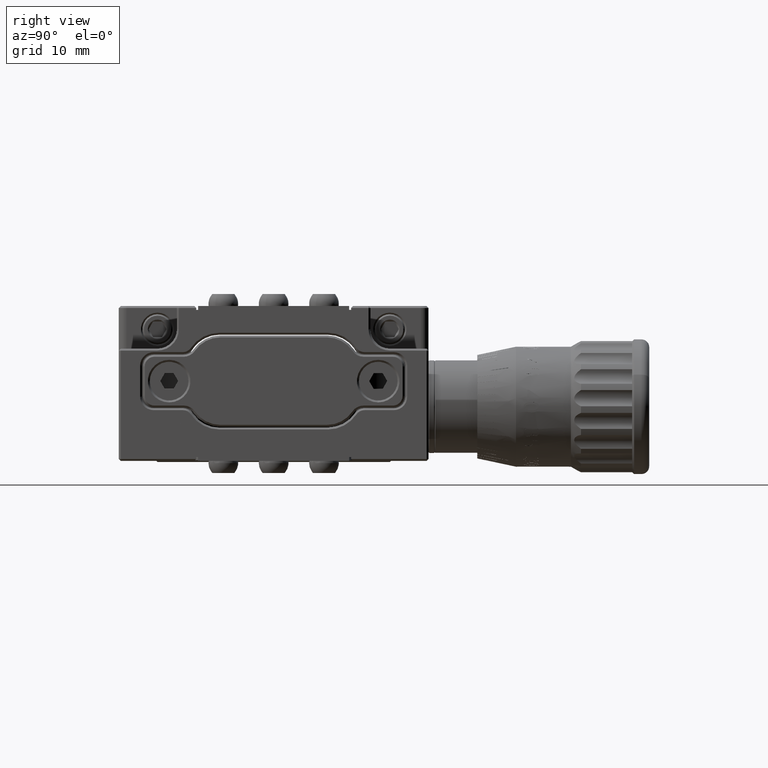
[diagram: clean part render]
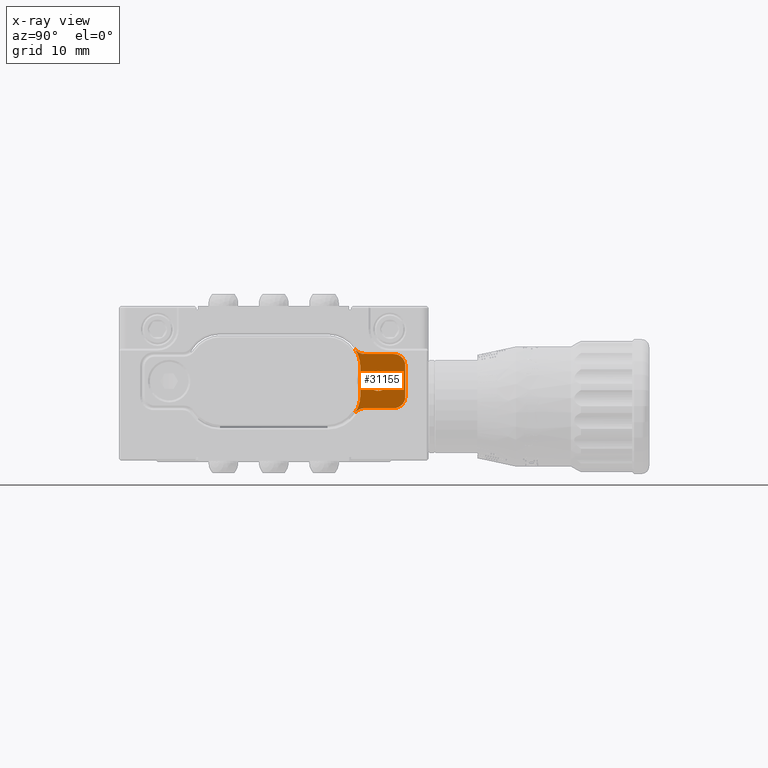
[diagram: x-ray — body ghosted, one internal face saturated and labeled with its STEP entity id]
A machine part, right view, then the same camera in x-ray: the body is ghosted and one INTERNAL B-rep face — a face not visible from any outside direction — is saturated and labeled: STEP entity #31155.
In plain terms, the highlighted planar face has unit normal (1, 0, 0).
Its self-contained STEP definition (entity closure, byte-faithful):
#1228 = CARTESIAN_POINT ( 'NONE',  ( 38.50000000000000000, 11.19999999999999574, 6.500000000000001776 ) ) ;
#1509 = CARTESIAN_POINT ( 'NONE',  ( 38.50000000000000000, -2.602085213965210642E-16, 0.000000000000000000 ) ) ;
#1915 = DIRECTION ( 'NONE',  ( 0.000000000000000000, -1.000000000000000000, 0.000000000000000000 ) ) ;
#1993 = LINE ( 'NONE', #32890, #43837 ) ;
#2086 = ORIENTED_EDGE ( 'NONE', *, *, #10076, .T. ) ;
#2471 = EDGE_CURVE ( 'NONE', #23355, #14434, #10988, .T. ) ;
#2668 = LINE ( 'NONE', #42305, #41640 ) ;
#2868 = EDGE_CURVE ( 'NONE', #35720, #18255, #11944, .T. ) ;
#3384 = CARTESIAN_POINT ( 'NONE',  ( 38.50000000000000000, 17.00000000000000711, 8.200000000000006395 ) ) ;
#3589 = AXIS2_PLACEMENT_3D ( 'NONE', #32533, #24815, #10231 ) ;
#3759 = ORIENTED_EDGE ( 'NONE', *, *, #42748, .T. ) ;
#3999 = AXIS2_PLACEMENT_3D ( 'NONE', #14407, #25687, #44116 ) ;
#4513 = CARTESIAN_POINT ( 'NONE',  ( 38.50000000000000000, 11.19999999999999574, 2.900000000000000799 ) ) ;
#4667 = ORIENTED_EDGE ( 'NONE', *, *, #7773, .T. ) ;
#4669 = CARTESIAN_POINT ( 'NONE',  ( 38.50000000000000000, 17.00000000000000711, 6.700000000000006395 ) ) ;
#5147 = CARTESIAN_POINT ( 'NONE',  ( 38.50000000000000000, 17.00000000000000711, 2.699999999999995737 ) ) ;
#5547 = ORIENTED_EDGE ( 'NONE', *, *, #6050, .T. ) ;
#5914 = AXIS2_PLACEMENT_3D ( 'NONE', #40108, #33057, #36616 ) ;
#6050 = EDGE_CURVE ( 'NONE', #18052, #35720, #21854, .T. ) ;
#6114 = DIRECTION ( 'NONE',  ( 1.000000000000000000, 0.000000000000000000, 0.000000000000000000 ) ) ;
#6265 = ORIENTED_EDGE ( 'NONE', *, *, #2471, .T. ) ;
#6900 = VERTEX_POINT ( 'NONE', #4669 ) ;
#7773 = EDGE_CURVE ( 'NONE', #18255, #43847, #2668, .T. ) ;
#8674 = FACE_OUTER_BOUND ( 'NONE', #36574, .T. ) ;
#8780 = DIRECTION ( 'NONE',  ( 0.000000000000000000, 0.000000000000000000, -1.000000000000000000 ) ) ;
#9094 = CARTESIAN_POINT ( 'NONE',  ( 38.50000000000000000, 11.71699056602829536, 9.700000000000004619 ) ) ;
#9154 = CARTESIAN_POINT ( 'NONE',  ( 38.50000000000000000, 10.47567725917874171, 0.5421052631578919812 ) ) ;
#9470 = VERTEX_POINT ( 'NONE', #9154 ) ;
#10076 = EDGE_CURVE ( 'NONE', #6900, #34835, #45894, .T. ) ;
#10231 = DIRECTION ( 'NONE',  ( 0.000000000000000000, -8.260587980841937794E-16, -1.000000000000000000 ) ) ;
#10472 = CARTESIAN_POINT ( 'NONE',  ( 38.50000000000000000, 6.999999999999994671, 2.900000000000000799 ) ) ;
#10641 = AXIS2_PLACEMENT_3D ( 'NONE', #15619, #22764, #45333 ) ;
#10653 = LINE ( 'NONE', #31711, #11751 ) ;
#10988 = CIRCLE ( 'NONE', #44078, 1.500000000000000000 ) ;
#11197 = DIRECTION ( 'NONE',  ( -1.000000000000000000, -0.000000000000000000, -0.000000000000000000 ) ) ;
#11751 = VECTOR ( 'NONE', #1915, 1000.000000000000000 ) ;
#11944 = CIRCLE ( 'NONE', #3589, 4.200000000000000178 ) ;
#12030 = EDGE_CURVE ( 'NONE', #19008, #19717, #38126, .T. ) ;
#12460 = AXIS2_PLACEMENT_3D ( 'NONE', #10472, #28927, #21369 ) ;
#12591 = CARTESIAN_POINT ( 'NONE',  ( 38.49999999999999289, 13.50000000000000000, 3.425000000000001155 ) ) ;
#13313 = ORIENTED_EDGE ( 'NONE', *, *, #23766, .T. ) ;
#14407 = CARTESIAN_POINT ( 'NONE',  ( 38.49999999999999289, 13.50000000000000000, 4.700000000000001066 ) ) ;
#14434 = VERTEX_POINT ( 'NONE', #5147 ) ;
#14518 = DIRECTION ( 'NONE',  ( 0.000000000000000000, 2.312964634635742661E-15, -1.000000000000000000 ) ) ;
#14570 = LINE ( 'NONE', #3384, #32976 ) ;
#15619 = CARTESIAN_POINT ( 'NONE',  ( 38.49999999999999289, 13.50000000000000000, 4.700000000000001066 ) ) ;
#16738 = CARTESIAN_POINT ( 'NONE',  ( 38.50000000000000000, 10.47567725917874348, 8.857894736842109040 ) ) ;
#17394 = CARTESIAN_POINT ( 'NONE',  ( 38.49999999999999289, 13.50000000000000000, 5.975000000000001421 ) ) ;
#18052 = VERTEX_POINT ( 'NONE', #39450 ) ;
#18188 = DIRECTION ( 'NONE',  ( -0.000000000000000000, -0.000000000000000000, 1.000000000000000000 ) ) ;
#18255 = VERTEX_POINT ( 'NONE', #1228 ) ;
#19008 = VERTEX_POINT ( 'NONE', #12591 ) ;
#19717 = VERTEX_POINT ( 'NONE', #17394 ) ;
#20373 = CIRCLE ( 'NONE', #3999, 1.275000000000000133 ) ;
#21369 = DIRECTION ( 'NONE',  ( 0.000000000000000000, -1.858632295689436004E-15, -1.000000000000000000 ) ) ;
#21854 = CIRCLE ( 'NONE', #40897, 1.499999999999999556 ) ;
#22586 = EDGE_CURVE ( 'NONE', #9470, #35543, #39370, .T. ) ;
#22764 = DIRECTION ( 'NONE',  ( 1.000000000000000000, -0.000000000000000000, -0.000000000000000000 ) ) ;
#23355 = VERTEX_POINT ( 'NONE', #32942 ) ;
#23578 = PLANE ( 'NONE',  #42716 ) ;
#23766 = EDGE_CURVE ( 'NONE', #35543, #23355, #1993, .T. ) ;
#24815 = DIRECTION ( 'NONE',  ( -1.000000000000000000, -0.000000000000000000, -0.000000000000000000 ) ) ;
#25490 = CARTESIAN_POINT ( 'NONE',  ( 38.50000000000000000, 11.71699056602829359, -0.3000000000000038192 ) ) ;
#25687 = DIRECTION ( 'NONE',  ( 1.000000000000000000, -0.000000000000000000, -0.000000000000000000 ) ) ;
#26781 = DIRECTION ( 'NONE',  ( 1.000000000000000000, 0.000000000000000000, 0.000000000000000000 ) ) ;
#26994 = FACE_BOUND ( 'NONE', #40769, .T. ) ;
#27458 = CIRCLE ( 'NONE', #12460, 4.200000000000000178 ) ;
#27732 = CARTESIAN_POINT ( 'NONE',  ( 38.50000000000000000, 15.50000000000000888, 2.699999999999995737 ) ) ;
#28711 = ORIENTED_EDGE ( 'NONE', *, *, #40632, .T. ) ;
#28927 = DIRECTION ( 'NONE',  ( -1.000000000000000000, -0.000000000000000000, -0.000000000000000000 ) ) ;
#29676 = EDGE_CURVE ( 'NONE', #19717, #19008, #20373, .T. ) ;
#29737 = ORIENTED_EDGE ( 'NONE', *, *, #22586, .T. ) ;
#30154 = ORIENTED_EDGE ( 'NONE', *, *, #38503, .T. ) ;
#30496 = DIRECTION ( 'NONE',  ( 0.000000000000000000, 0.000000000000000000, -1.000000000000000000 ) ) ;
#30801 = ORIENTED_EDGE ( 'NONE', *, *, #2868, .T. ) ;
#31155 = ADVANCED_FACE ( 'NONE', ( #26994, #8674 ), #23578, .T. ) ;
#31281 = DIRECTION ( 'NONE',  ( 0.000000000000000000, 1.445602896647339163E-16, -1.000000000000000000 ) ) ;
#31383 = DIRECTION ( 'NONE',  ( -1.000000000000000000, -0.000000000000000000, -0.000000000000000000 ) ) ;
#31711 = CARTESIAN_POINT ( 'NONE',  ( 38.50000000000000000, 17.00000000000000711, 8.200000000000006395 ) ) ;
#32533 = CARTESIAN_POINT ( 'NONE',  ( 38.50000000000000000, 6.999999999999995559, 6.500000000000000888 ) ) ;
#32574 = DIRECTION ( 'NONE',  ( -0.000000000000000000, 1.000000000000000000, -0.000000000000000000 ) ) ;
#32890 = CARTESIAN_POINT ( 'NONE',  ( 38.50000000000000000, 17.00000000000000711, 1.199999999999996181 ) ) ;
#32942 = CARTESIAN_POINT ( 'NONE',  ( 38.50000000000000000, 15.50000000000000888, 1.199999999999996181 ) ) ;
#32976 = VECTOR ( 'NONE', #18188, 1000.000000000000000 ) ;
#33057 = DIRECTION ( 'NONE',  ( 1.000000000000000000, 0.000000000000000000, 0.000000000000000000 ) ) ;
#34835 = VERTEX_POINT ( 'NONE', #43774 ) ;
#35543 = VERTEX_POINT ( 'NONE', #43811 ) ;
#35720 = VERTEX_POINT ( 'NONE', #16738 ) ;
#36574 = EDGE_LOOP ( 'NONE', ( #13313, #6265, #28711, #2086, #30154, #5547, #30801, #4667, #3759, #29737 ) ) ;
#36616 = DIRECTION ( 'NONE',  ( 0.000000000000000000, 0.000000000000000000, -1.000000000000000000 ) ) ;
#38126 = CIRCLE ( 'NONE', #10641, 1.275000000000000133 ) ;
#38503 = EDGE_CURVE ( 'NONE', #34835, #18052, #10653, .T. ) ;
#38991 = DIRECTION ( 'NONE',  ( 0.000000000000000000, 0.000000000000000000, -1.000000000000000000 ) ) ;
#39370 = CIRCLE ( 'NONE', #39637, 1.500000000000000000 ) ;
#39450 = CARTESIAN_POINT ( 'NONE',  ( 38.50000000000000000, 11.71699056602829536, 8.200000000000006395 ) ) ;
#39637 = AXIS2_PLACEMENT_3D ( 'NONE', #25490, #11197, #14518 ) ;
#40108 = CARTESIAN_POINT ( 'NONE',  ( 38.50000000000000000, 15.50000000000000888, 6.700000000000006395 ) ) ;
#40632 = EDGE_CURVE ( 'NONE', #14434, #6900, #14570, .T. ) ;
#40769 = EDGE_LOOP ( 'NONE', ( #47441, #46106 ) ) ;
#40897 = AXIS2_PLACEMENT_3D ( 'NONE', #9094, #31383, #8780 ) ;
#41640 = VECTOR ( 'NONE', #31281, 1000.000000000000000 ) ;
#42305 = CARTESIAN_POINT ( 'NONE',  ( 38.50000000000000000, 11.19999999999999574, -1.300000000000000044 ) ) ;
#42716 = AXIS2_PLACEMENT_3D ( 'NONE', #1509, #26781, #30496 ) ;
#42748 = EDGE_CURVE ( 'NONE', #43847, #9470, #27458, .T. ) ;
#43774 = CARTESIAN_POINT ( 'NONE',  ( 38.50000000000000000, 15.50000000000000888, 8.200000000000006395 ) ) ;
#43811 = CARTESIAN_POINT ( 'NONE',  ( 38.50000000000000000, 11.71699056602829359, 1.199999999999996181 ) ) ;
#43837 = VECTOR ( 'NONE', #32574, 1000.000000000000000 ) ;
#43847 = VERTEX_POINT ( 'NONE', #4513 ) ;
#44078 = AXIS2_PLACEMENT_3D ( 'NONE', #27732, #6114, #38991 ) ;
#44116 = DIRECTION ( 'NONE',  ( 0.000000000000000000, 0.000000000000000000, -1.000000000000000000 ) ) ;
#45333 = DIRECTION ( 'NONE',  ( 0.000000000000000000, 0.000000000000000000, -1.000000000000000000 ) ) ;
#45894 = CIRCLE ( 'NONE', #5914, 1.499999999999999556 ) ;
#46106 = ORIENTED_EDGE ( 'NONE', *, *, #29676, .F. ) ;
#47441 = ORIENTED_EDGE ( 'NONE', *, *, #12030, .F. ) ;